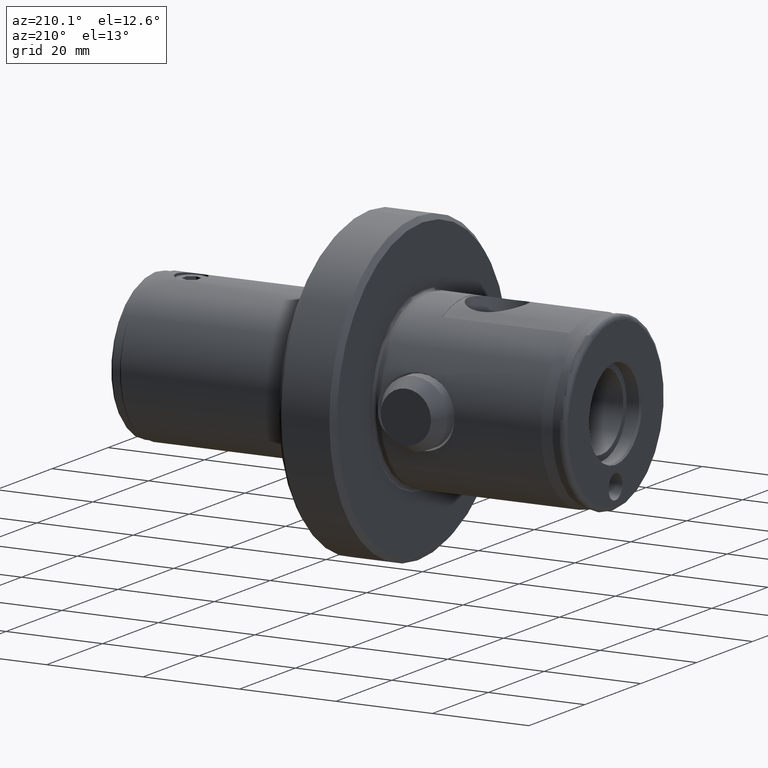
[diagram: clean part render]
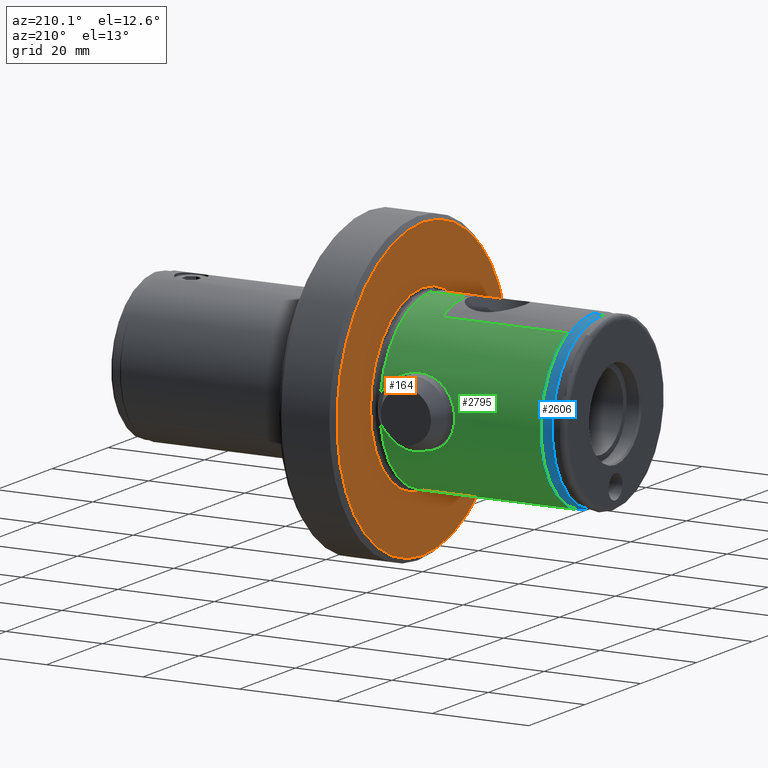
[diagram: same view with three faces highlighted in distinct colors, each labeled with its STEP entity id]
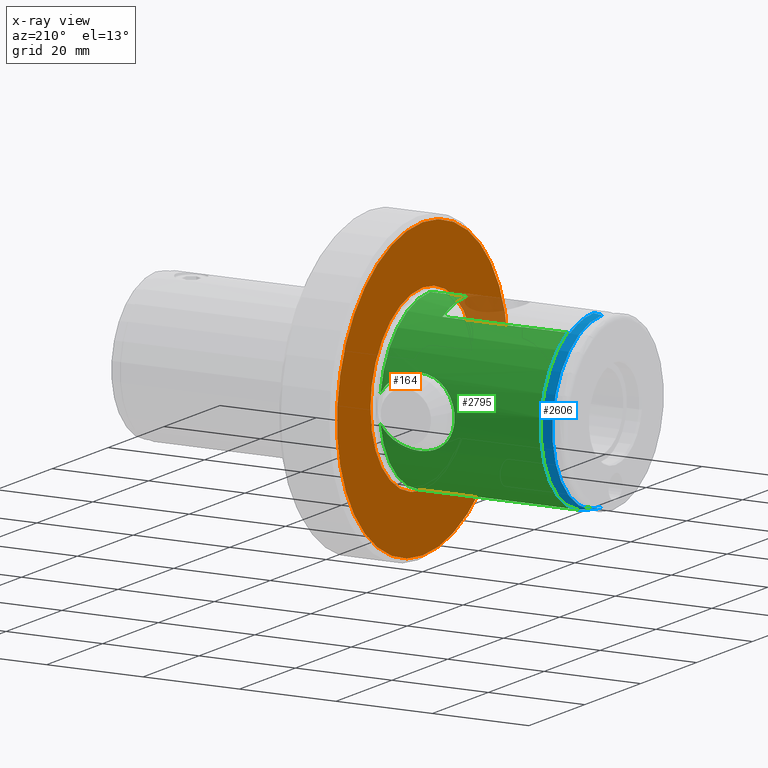
[diagram: x-ray of the same camera — body ghosted, the three highlighted faces saturated]
A machine part, auxiliary view with three faces highlighted in distinct colors.
The next image is the same camera in x-ray (body ghosted, the three faces saturated) — at least one of them is partly hidden behind the body in this view.
Their STEP definitions:

[orange] entity #164 — the highlighted planar face has unit normal (1, 0, 0).
#133 = VERTEX_POINT ( 'NONE', #4474 ) ;
#164 = ADVANCED_FACE ( 'NONE', ( #1389, #2657 ), #2022, .F. ) ;
#191 = VERTEX_POINT ( 'NONE', #1283 ) ;
#234 = DIRECTION ( 'NONE',  ( 0.0000000000000000000, 0.0000000000000000000, 1.000000000000000000 ) ) ;
#266 = DIRECTION ( 'NONE',  ( 0.0000000000000000000, 0.0000000000000000000, 1.000000000000000000 ) ) ;
#352 = EDGE_CURVE ( 'NONE', #133, #1387, #1136, .T. ) ;
#497 = ORIENTED_EDGE ( 'NONE', *, *, #1438, .T. ) ;
#683 = DIRECTION ( 'NONE',  ( -1.000000000000000000, -0.0000000000000000000, -0.0000000000000000000 ) ) ;
#685 = CIRCLE ( 'NONE', #4755, 18.63903132955060100 ) ;
#864 = DIRECTION ( 'NONE',  ( 1.000000000000000000, 0.0000000000000000000, 0.0000000000000000000 ) ) ;
#873 = CARTESIAN_POINT ( 'NONE',  ( 40.00000000000000000, 0.0000000000000000000, -30.63500000000000200 ) ) ;
#1017 = CARTESIAN_POINT ( 'NONE',  ( 40.00000000000000000, 0.0000000000000000000, 0.0000000000000000000 ) ) ;
#1049 = CARTESIAN_POINT ( 'NONE',  ( 40.00000000000000000, 0.0000000000000000000, 0.0000000000000000000 ) ) ;
#1136 = CIRCLE ( 'NONE', #2158, 18.63903132955060100 ) ;
#1175 = DIRECTION ( 'NONE',  ( 0.0000000000000000000, 0.0000000000000000000, -1.000000000000000000 ) ) ;
#1283 = CARTESIAN_POINT ( 'NONE',  ( 40.00000000000000000, 3.812937809145284600E-015, 30.63500000000000200 ) ) ;
#1387 = VERTEX_POINT ( 'NONE', #3756 ) ;
#1389 = FACE_BOUND ( 'NONE', #2537, .T. ) ;
#1438 = EDGE_CURVE ( 'NONE', #191, #3074, #2703, .T. ) ;
#1473 = EDGE_CURVE ( 'NONE', #1387, #133, #685, .T. ) ;
#1744 = EDGE_CURVE ( 'NONE', #3074, #191, #2765, .T. ) ;
#1834 = DIRECTION ( 'NONE',  ( -1.000000000000000000, -0.0000000000000000000, -0.0000000000000000000 ) ) ;
#2022 = PLANE ( 'NONE',  #2088 ) ;
#2078 = AXIS2_PLACEMENT_3D ( 'NONE', #1017, #1834, #2662 ) ;
#2088 = AXIS2_PLACEMENT_3D ( 'NONE', #2454, #864, #1175 ) ;
#2158 = AXIS2_PLACEMENT_3D ( 'NONE', #3876, #2733, #3115 ) ;
#2230 = ORIENTED_EDGE ( 'NONE', *, *, #1473, .F. ) ;
#2454 = CARTESIAN_POINT ( 'NONE',  ( 40.00000000000000000, 18.63903132955060100, 0.0000000000000000000 ) ) ;
#2537 = EDGE_LOOP ( 'NONE', ( #4413, #2230 ) ) ;
#2657 = FACE_OUTER_BOUND ( 'NONE', #5131, .T. ) ;
#2662 = DIRECTION ( 'NONE',  ( 0.0000000000000000000, 0.0000000000000000000, 1.000000000000000000 ) ) ;
#2703 = CIRCLE ( 'NONE', #2078, 30.63500000000000200 ) ;
#2733 = DIRECTION ( 'NONE',  ( -1.000000000000000000, -0.0000000000000000000, -0.0000000000000000000 ) ) ;
#2765 = CIRCLE ( 'NONE', #4656, 30.63500000000000200 ) ;
#3074 = VERTEX_POINT ( 'NONE', #873 ) ;
#3115 = DIRECTION ( 'NONE',  ( 0.0000000000000000000, 0.0000000000000000000, 1.000000000000000000 ) ) ;
#3689 = ORIENTED_EDGE ( 'NONE', *, *, #1744, .T. ) ;
#3756 = CARTESIAN_POINT ( 'NONE',  ( 40.00000000000000000, 2.282623005694137900E-015, -18.63903132955060100 ) ) ;
#3876 = CARTESIAN_POINT ( 'NONE',  ( 40.00000000000000000, 0.0000000000000000000, 0.0000000000000000000 ) ) ;
#3968 = CARTESIAN_POINT ( 'NONE',  ( 40.00000000000000000, 0.0000000000000000000, 0.0000000000000000000 ) ) ;
#4256 = DIRECTION ( 'NONE',  ( -1.000000000000000000, -0.0000000000000000000, -0.0000000000000000000 ) ) ;
#4413 = ORIENTED_EDGE ( 'NONE', *, *, #352, .F. ) ;
#4474 = CARTESIAN_POINT ( 'NONE',  ( 40.00000000000000000, 0.0000000000000000000, 18.63903132955060100 ) ) ;
#4656 = AXIS2_PLACEMENT_3D ( 'NONE', #3968, #683, #234 ) ;
#4755 = AXIS2_PLACEMENT_3D ( 'NONE', #1049, #4256, #266 ) ;
#5131 = EDGE_LOOP ( 'NONE', ( #3689, #497 ) ) ;

[blue] entity #2606 — the highlighted conical surface has half-angle 8 deg.
#110 = CARTESIAN_POINT ( 'NONE',  ( 2.822810404226113500, 2.185628119516886500E-015, 17.69401595690456800 ) ) ;
#143 = DIRECTION ( 'NONE',  ( 1.000000000000000000, 0.0000000000000000000, 0.0000000000000000000 ) ) ;
#230 = EDGE_CURVE ( 'NONE', #4234, #3862, #2348, .T. ) ;
#342 = VERTEX_POINT ( 'NONE', #1462 ) ;
#483 = EDGE_CURVE ( 'NONE', #610, #3862, #4649, .T. ) ;
#544 = VECTOR ( 'NONE', #3654, 1000.000000000000000 ) ;
#562 = CARTESIAN_POINT ( 'NONE',  ( 4.561173011721211700, 8.500000000000001800, 15.79663165262242700 ) ) ;
#596 = CARTESIAN_POINT ( 'NONE',  ( 4.506949049834921600, 2.572302290702973800, 17.74910654927889600 ) ) ;
#610 = VERTEX_POINT ( 'NONE', #110 ) ;
#613 = CARTESIAN_POINT ( 'NONE',  ( 4.541645771106434600, 7.187216486560393100, 16.49991008679421300 ) ) ;
#630 = CARTESIAN_POINT ( 'NONE',  ( 5.000000000000000000, 2.204364238465235000E-015, -17.99999999999999600 ) ) ;
#643 = CARTESIAN_POINT ( 'NONE',  ( 2.822810404226113500, 0.0000000000000000000, -17.69401595690456800 ) ) ;
#646 = ORIENTED_EDGE ( 'NONE', *, *, #5075, .F. ) ;
#747 = CARTESIAN_POINT ( 'NONE',  ( 4.561173011721211700, 8.500000000000001800, 15.79663165262242700 ) ) ;
#789 = EDGE_CURVE ( 'NONE', #342, #1439, #1516, .T. ) ;
#872 = ORIENTED_EDGE ( 'NONE', *, *, #230, .F. ) ;
#970 = CARTESIAN_POINT ( 'NONE',  ( 4.526975339076886800, 5.815750174379757300, 17.02811837977963100 ) ) ;
#986 = CARTESIAN_POINT ( 'NONE',  ( 4.503167209855087400, 1.469061508139440900, 17.88525124977483900 ) ) ;
#1087 = AXIS2_PLACEMENT_3D ( 'NONE', #3400, #143, #4237 ) ;
#1166 = CARTESIAN_POINT ( 'NONE',  ( 5.000000000000000000, 0.0000000000000000000, -17.99999999999999600 ) ) ;
#1186 = CARTESIAN_POINT ( 'NONE',  ( 4.629592276591484500, 8.500000000000001800, 15.80755104254829700 ) ) ;
#1188 = CIRCLE ( 'NONE', #4430, 17.69401595690456800 ) ;
#1202 = EDGE_CURVE ( 'NONE', #610, #1216, #1188, .T. ) ;
#1216 = VERTEX_POINT ( 'NONE', #643 ) ;
#1235 = CARTESIAN_POINT ( 'NONE',  ( 5.000000000000000000, 2.204364238465235000E-015, 17.99999999999999600 ) ) ;
#1239 = CONICAL_SURFACE ( 'NONE', #1087, 17.99999999999999600, 0.1396263401595468100 ) ;
#1251 = B_SPLINE_CURVE_WITH_KNOTS ( 'NONE', 3,
 ( #1565, #3982, #2782, #2364, #3607, #1186, #747 ),
 .UNSPECIFIED., .F., .F.,
 ( 4, 3, 4 ),
 ( 0.005353890723172515000, 0.005590410233427220800, 0.005798265535691416900 ),
 .UNSPECIFIED. ) ;
#1268 = DIRECTION ( 'NONE',  ( 0.9902680687415702500, 1.704378926181561200E-017, 0.1391731009600658800 ) ) ;
#1370 = CARTESIAN_POINT ( 'NONE',  ( 4.501924119433152100, 0.7342156615914451300, 17.93000000000000000 ) ) ;
#1383 = VECTOR ( 'NONE', #1268, 1000.000000000000000 ) ;
#1388 = CARTESIAN_POINT ( 'NONE',  ( 4.561173011721211700, 8.500000000000001800, 15.79663165262242700 ) ) ;
#1439 = VERTEX_POINT ( 'NONE', #630 ) ;
#1462 = CARTESIAN_POINT ( 'NONE',  ( 5.000000000000000000, 8.500000000000001800, 15.86663165262242400 ) ) ;
#1500 = LINE ( 'NONE', #1166, #544 ) ;
#1516 = CIRCLE ( 'NONE', #3269, 17.99999999999999600 ) ;
#1565 = CARTESIAN_POINT ( 'NONE',  ( 5.000000000000000000, 8.500000000000001800, 15.86663165262242400 ) ) ;
#1634 = ORIENTED_EDGE ( 'NONE', *, *, #789, .T. ) ;
#2000 = CARTESIAN_POINT ( 'NONE',  ( 4.501924119433152100, 1.318032018692837200E-015, 17.93000000000000000 ) ) ;
#2013 = ORIENTED_EDGE ( 'NONE', *, *, #1202, .F. ) ;
#2107 = DIRECTION ( 'NONE',  ( 0.0000000000000000000, 0.0000000000000000000, 1.000000000000000000 ) ) ;
#2150 = EDGE_CURVE ( 'NONE', #1216, #1439, #1500, .T. ) ;
#2213 = EDGE_LOOP ( 'NONE', ( #2013, #3244, #872, #646, #1634, #3537 ) ) ;
#2324 = DIRECTION ( 'NONE',  ( 0.0000000000000000000, 0.0000000000000000000, 1.000000000000000000 ) ) ;
#2348 = B_SPLINE_CURVE_WITH_KNOTS ( 'NONE', 3,
 ( #1388, #613, #970, #3385, #3801, #4223, #596, #986, #1370, #3437 ),
 .UNSPECIFIED., .F., .F.,
 ( 4, 2, 2, 2, 4 ),
 ( 2.236915273377554400E-007, 0.004405091776158564400, 0.005506308797316371500, 0.006607525818474176800, 0.008809959860789792800 ),
 .UNSPECIFIED. ) ;
#2364 = CARTESIAN_POINT ( 'NONE',  ( 4.766431990659278000, 8.500000000000001800, 15.82938240072041400 ) ) ;
#2606 = ADVANCED_FACE ( 'NONE', ( #2945 ), #1239, .T. ) ;
#2725 = CARTESIAN_POINT ( 'NONE',  ( 2.822810404226113500, 0.0000000000000000000, 0.0000000000000000000 ) ) ;
#2782 = CARTESIAN_POINT ( 'NONE',  ( 4.844287486133798600, 8.500000000000001800, 15.84180200070681500 ) ) ;
#2945 = FACE_OUTER_BOUND ( 'NONE', #2213, .T. ) ;
#3244 = ORIENTED_EDGE ( 'NONE', *, *, #483, .T. ) ;
#3269 = AXIS2_PLACEMENT_3D ( 'NONE', #4482, #4857, #2107 ) ;
#3385 = CARTESIAN_POINT ( 'NONE',  ( 4.514512600342740700, 4.030500815527453500, 17.47681169941615000 ) ) ;
#3400 = CARTESIAN_POINT ( 'NONE',  ( 5.000000000000000000, 0.0000000000000000000, 0.0000000000000000000 ) ) ;
#3437 = CARTESIAN_POINT ( 'NONE',  ( 4.501924119433152100, 1.318032018692837200E-015, 17.93000000000000000 ) ) ;
#3537 = ORIENTED_EDGE ( 'NONE', *, *, #2150, .F. ) ;
#3607 = CARTESIAN_POINT ( 'NONE',  ( 4.698011937138924800, 8.500000000000001800, 15.81846795350520200 ) ) ;
#3654 = DIRECTION ( 'NONE',  ( 0.9902680687415702500, 0.0000000000000000000, -0.1391731009600658800 ) ) ;
#3801 = CARTESIAN_POINT ( 'NONE',  ( 4.512318024354617500, 3.669854151725033400, 17.55581995454566900 ) ) ;
#3862 = VERTEX_POINT ( 'NONE', #2000 ) ;
#3982 = CARTESIAN_POINT ( 'NONE',  ( 4.922143490562183900, 8.500000000000001800, 15.85421841059769000 ) ) ;
#4223 = CARTESIAN_POINT ( 'NONE',  ( 4.508536962439103000, 2.941221782085254400, 17.69194170110860800 ) ) ;
#4234 = VERTEX_POINT ( 'NONE', #562 ) ;
#4237 = DIRECTION ( 'NONE',  ( 0.0000000000000000000, 0.0000000000000000000, -1.000000000000000000 ) ) ;
#4430 = AXIS2_PLACEMENT_3D ( 'NONE', #2725, #5141, #2324 ) ;
#4482 = CARTESIAN_POINT ( 'NONE',  ( 5.000000000000000000, 0.0000000000000000000, 0.0000000000000000000 ) ) ;
#4649 = LINE ( 'NONE', #1235, #1383 ) ;
#4857 = DIRECTION ( 'NONE',  ( -1.000000000000000000, -0.0000000000000000000, -0.0000000000000000000 ) ) ;
#5075 = EDGE_CURVE ( 'NONE', #342, #4234, #1251, .T. ) ;
#5141 = DIRECTION ( 'NONE',  ( -1.000000000000000000, -0.0000000000000000000, -0.0000000000000000000 ) ) ;

[green] entity #2795 — the highlighted cylindrical surface (partial cylindrical patch) has radius 18 mm, axis along (-1, -0, -0).
#6 = CARTESIAN_POINT ( 'NONE',  ( 28.68931508895390800, 16.62172541123075200, -6.909358408355208400 ) ) ;
#15 = CARTESIAN_POINT ( 'NONE',  ( 31.00000000000000000, 0.0000000000000000000, 0.0000000000000000000 ) ) ;
#26 = CARTESIAN_POINT ( 'NONE',  ( 34.91913907800201900, 16.86368335530488200, -6.294905354049918200 ) ) ;
#37 = CARTESIAN_POINT ( 'NONE',  ( 38.41455850893560600, 2.204364238465235000E-015, -17.99999999999999600 ) ) ;
#58 = CARTESIAN_POINT ( 'NONE',  ( 38.41455850893560600, 17.77522644697580400, -2.835722969320480000 ) ) ;
#194 = ORIENTED_EDGE ( 'NONE', *, *, #5069, .F. ) ;
#201 = CARTESIAN_POINT ( 'NONE',  ( 38.41455850893560600, 0.0000000000000000000, 17.99999999999999600 ) ) ;
#250 = VECTOR ( 'NONE', #1349, 1000.000000000000000 ) ;
#278 = CARTESIAN_POINT ( 'NONE',  ( 26.63762583643104200, 16.94773195362926200, 6.067828240129368400 ) ) ;
#342 = VERTEX_POINT ( 'NONE', #1462 ) ;
#343 = CARTESIAN_POINT ( 'NONE',  ( 26.28859359313112900, 17.02274508933090800, -5.856424216264334100 ) ) ;
#369 = LINE ( 'NONE', #3796, #250 ) ;
#424 = CARTESIAN_POINT ( 'NONE',  ( 31.31967915464217700, 16.49483146206961200, -7.205593547632094700 ) ) ;
#438 = CARTESIAN_POINT ( 'NONE',  ( 31.75936099716420500, 16.50645626538545600, -7.179204234457063000 ) ) ;
#456 = CARTESIAN_POINT ( 'NONE',  ( 33.06626629754461500, 16.59899160917127900, -6.962466582681459600 ) ) ;
#529 = CIRCLE ( 'NONE', #952, 17.99999999999999600 ) ;
#630 = CARTESIAN_POINT ( 'NONE',  ( 5.000000000000000000, 2.204364238465235000E-015, -17.99999999999999600 ) ) ;
#639 = CARTESIAN_POINT ( 'NONE',  ( 37.47707335714002100, 17.48007102607759600, 4.310109289213925400 ) ) ;
#659 = CARTESIAN_POINT ( 'NONE',  ( 33.04300684568005400, 16.59669515726684400, 6.967933976370146000 ) ) ;
#677 = CARTESIAN_POINT ( 'NONE',  ( 37.99646474748055200, 17.63860882376996000, 3.606855129293381700 ) ) ;
#684 = ORIENTED_EDGE ( 'NONE', *, *, #2637, .T. ) ;
#693 = B_SPLINE_CURVE_WITH_KNOTS ( 'NONE', 3,
 ( #5156, #1506, #2391, #3550, #5191, #2722, #3126, #711, #2756, #3532, #3927, #1146, #1162, #1921, #1521, #343, #1991, #4784, #3616, #6, #2025, #2440, #4033, #424, #438, #2826, #1595, #456, #3997, #3242, #4426, #26, #2060, #1664, #2873, #2006, #4409, #2043, #798, #2862, #2842, #58 ),
 .UNSPECIFIED., .F., .F.,
 ( 4, 2, 2, 2, 2, 2, 2, 2, 2, 2, 2, 2, 2, 2, 2, 2, 2, 2, 2, 2, 4 ),
 ( 0.04231837611106453700, 0.04364345451560890800, 0.04430599371788109000, 0.04496853292015327200, 0.04563107212242545300, 0.04629361132469764200, 0.04761868972924200600, 0.04894376813378637600, 0.05026884653833074000, 0.05159392494287511100, 0.05291900334741947400, 0.05424408175196383800, 0.05556916015650819500, 0.05623169935878038300, 0.05689423856105257900, 0.05821931696559695700, 0.05888185616786913900, 0.05954439537014132700, 0.06086947377468571900, 0.06219455217923010300, 0.06351963058377449500 ),
 .UNSPECIFIED. ) ;
#694 = CARTESIAN_POINT ( 'NONE',  ( 23.55458967925925500, 17.78533201208745100, 2.779154847720370900 ) ) ;
#706 = ORIENTED_EDGE ( 'NONE', *, *, #3197, .F. ) ;
#711 = CARTESIAN_POINT ( 'NONE',  ( 23.55845802897322000, 17.78404422032052400, -2.787362493545952400 ) ) ;
#789 = EDGE_CURVE ( 'NONE', #342, #1439, #1516, .T. ) ;
#798 = CARTESIAN_POINT ( 'NONE',  ( 37.48006713832752700, 17.48094520961730700, -4.306718970528768500 ) ) ;
#952 = AXIS2_PLACEMENT_3D ( 'NONE', #15, #1228, #3251 ) ;
#981 = VERTEX_POINT ( 'NONE', #1733 ) ;
#1028 = CARTESIAN_POINT ( 'NONE',  ( 38.22325769522573300, 17.71178676538877300, 3.233383360738678400 ) ) ;
#1045 = CARTESIAN_POINT ( 'NONE',  ( 37.18306621504534300, 17.39441197991005300, 4.640149856457091100 ) ) ;
#1074 = CARTESIAN_POINT ( 'NONE',  ( 34.30770989249216300, 16.75615000173566600, 6.577976082768544500 ) ) ;
#1110 = EDGE_LOOP ( 'NONE', ( #684, #1668, #4243, #194, #3954, #706, #4104, #2972, #4543 ) ) ;
#1113 = AXIS2_PLACEMENT_3D ( 'NONE', #4369, #4819, #5208 ) ;
#1146 = CARTESIAN_POINT ( 'NONE',  ( 24.35650833749220100, 17.52982895310218200, -4.103990358311621700 ) ) ;
#1162 = CARTESIAN_POINT ( 'NONE',  ( 24.63436073430891300, 17.44689145738176400, -4.439577198171324600 ) ) ;
#1167 = DIRECTION ( 'NONE',  ( -1.000000000000000000, -0.0000000000000000000, -0.0000000000000000000 ) ) ;
#1228 = DIRECTION ( 'NONE',  ( 1.000000000000000000, 0.0000000000000000000, 0.0000000000000000000 ) ) ;
#1349 = DIRECTION ( 'NONE',  ( -1.000000000000000000, -0.0000000000000000000, -0.0000000000000000000 ) ) ;
#1405 = EDGE_CURVE ( 'NONE', #2061, #1439, #369, .T. ) ;
#1439 = VERTEX_POINT ( 'NONE', #630 ) ;
#1462 = CARTESIAN_POINT ( 'NONE',  ( 5.000000000000000000, 8.500000000000001800, 15.86663165262242400 ) ) ;
#1472 = CARTESIAN_POINT ( 'NONE',  ( 31.73670170766269300, 16.50563471118012500, 7.181082085637370000 ) ) ;
#1487 = CARTESIAN_POINT ( 'NONE',  ( 24.62010505910683000, 17.45106249884142000, 4.423131486813447900 ) ) ;
#1506 = CARTESIAN_POINT ( 'NONE',  ( 22.93190200199919500, 17.99999999999998900, -0.4442097121161643900 ) ) ;
#1516 = CIRCLE ( 'NONE', #3269, 17.99999999999999600 ) ;
#1521 = CARTESIAN_POINT ( 'NONE',  ( 25.58281051922636000, 17.18925380789051300, -5.348000421195600000 ) ) ;
#1548 = CIRCLE ( 'NONE', #1113, 17.99999999999999600 ) ;
#1595 = CARTESIAN_POINT ( 'NONE',  ( 32.63231668030569900, 16.56034365531662500, -7.053898310445703100 ) ) ;
#1664 = CARTESIAN_POINT ( 'NONE',  ( 35.49434043996613000, 16.97779143842763700, -5.980604082472052800 ) ) ;
#1668 = ORIENTED_EDGE ( 'NONE', *, *, #1405, .T. ) ;
#1733 = CARTESIAN_POINT ( 'NONE',  ( 22.93190200199920200, 17.99999999999999600, -3.871334892372115400E-025 ) ) ;
#1826 = CARTESIAN_POINT ( 'NONE',  ( 32.60957766427833300, 16.55856864973131700, 7.058059103920378200 ) ) ;
#1881 = CARTESIAN_POINT ( 'NONE',  ( 30.40898110822280400, 16.50078830626885900, 7.191943260475200700 ) ) ;
#1897 = CARTESIAN_POINT ( 'NONE',  ( 24.34541863625331000, 17.53321062079486100, 4.089163731635486500 ) ) ;
#1915 = AXIS2_PLACEMENT_3D ( 'NONE', #3754, #2569, #3813 ) ;
#1921 = CARTESIAN_POINT ( 'NONE',  ( 25.24655750495666600, 17.27678132775169600, -5.061293725643069200 ) ) ;
#1938 = CARTESIAN_POINT ( 'NONE',  ( 22.93190200199919500, 17.99999999999999300, 0.2219730551926340800 ) ) ;
#1991 = CARTESIAN_POINT ( 'NONE',  ( 26.66053469898521300, 16.94301535979870400, -6.080955321691590100 ) ) ;
#2006 = CARTESIAN_POINT ( 'NONE',  ( 36.22501593775069800, 17.14163620460445300, -5.498251275227708000 ) ) ;
#2025 = CARTESIAN_POINT ( 'NONE',  ( 29.11575502398848100, 16.57827458412401000, -7.011903959323706900 ) ) ;
#2043 = CARTESIAN_POINT ( 'NONE',  ( 37.18956424906622300, 17.39628433779718700, -4.633026610527011300 ) ) ;
#2060 = CARTESIAN_POINT ( 'NONE',  ( 35.11323967572234700, 16.90058372384155700, -6.195425498821697000 ) ) ;
#2061 = VERTEX_POINT ( 'NONE', #37 ) ;
#2107 = DIRECTION ( 'NONE',  ( 0.0000000000000000000, 0.0000000000000000000, 1.000000000000000000 ) ) ;
#2114 = AXIS2_PLACEMENT_3D ( 'NONE', #3467, #3872, #3499 ) ;
#2242 = CARTESIAN_POINT ( 'NONE',  ( 36.21141091913104800, 17.13830921320812500, 5.508610082120564600 ) ) ;
#2270 = CARTESIAN_POINT ( 'NONE',  ( 36.55129623075387000, 17.22388653117948800, 5.237775441756848900 ) ) ;
#2288 = CARTESIAN_POINT ( 'NONE',  ( 29.09134896299174100, 16.58051310533916100, 7.006623401730663200 ) ) ;
#2306 = CARTESIAN_POINT ( 'NONE',  ( 33.89734758831384200, 16.69476340113109500, 6.730705771259678700 ) ) ;
#2387 = EDGE_CURVE ( 'NONE', #3970, #981, #3114, .T. ) ;
#2391 = CARTESIAN_POINT ( 'NONE',  ( 22.97769097315834600, 17.98358038333631000, -0.8840669560141553000 ) ) ;
#2440 = CARTESIAN_POINT ( 'NONE',  ( 29.98658153610719900, 16.51738820525706300, -7.154150697198582000 ) ) ;
#2481 = EDGE_CURVE ( 'NONE', #981, #5214, #693, .T. ) ;
#2563 = DIRECTION ( 'NONE',  ( -1.000000000000000000, -0.0000000000000000000, -0.0000000000000000000 ) ) ;
#2569 = DIRECTION ( 'NONE',  ( -1.000000000000000000, -0.0000000000000000000, -0.0000000000000000000 ) ) ;
#2607 = VERTEX_POINT ( 'NONE', #3776 ) ;
#2637 = EDGE_CURVE ( 'NONE', #5214, #2061, #5138, .T. ) ;
#2672 = CARTESIAN_POINT ( 'NONE',  ( 35.09994271429703600, 16.89526614417736600, 6.211949303041297600 ) ) ;
#2689 = CARTESIAN_POINT ( 'NONE',  ( 27.41661514601358400, 16.80145667017276200, 6.461827271297570600 ) ) ;
#2702 = CARTESIAN_POINT ( 'NONE',  ( 27.82837615247086700, 16.73465567413484900, 6.631197576125881500 ) ) ;
#2722 = CARTESIAN_POINT ( 'NONE',  ( 23.30652457802580500, 17.86911317836021200, -2.177142978797158800 ) ) ;
#2741 = CARTESIAN_POINT ( 'NONE',  ( 22.99013818440916200, 17.97931556761555100, 0.8908833420161134100 ) ) ;
#2756 = CARTESIAN_POINT ( 'NONE',  ( 23.65540555508770400, 17.75190002092530900, -2.984704378626416700 ) ) ;
#2795 = ADVANCED_FACE ( 'NONE', ( #4820 ), #4003, .T. ) ;
#2826 = CARTESIAN_POINT ( 'NONE',  ( 32.41461366777974000, 16.54432081348344900, -7.091295141990646500 ) ) ;
#2842 = CARTESIAN_POINT ( 'NONE',  ( 38.22606379371786300, 17.71271733118926800, -3.227550274077396700 ) ) ;
#2862 = CARTESIAN_POINT ( 'NONE',  ( 38.00119512299937000, 17.64009293534651600, -3.599777068804775200 ) ) ;
#2867 = LINE ( 'NONE', #4735, #4182 ) ;
#2873 = CARTESIAN_POINT ( 'NONE',  ( 35.68202834501068600, 17.01826837074836600, -5.864738389333546700 ) ) ;
#2972 = ORIENTED_EDGE ( 'NONE', *, *, #2387, .T. ) ;
#2998 = LINE ( 'NONE', #4889, #5066 ) ;
#3056 = CARTESIAN_POINT ( 'NONE',  ( 38.41455850893566300, 17.77522644697582200, 2.835722969320359200 ) ) ;
#3072 = CARTESIAN_POINT ( 'NONE',  ( 33.25972824885349200, 16.61916049909768500, 6.914324667310957300 ) ) ;
#3089 = CARTESIAN_POINT ( 'NONE',  ( 26.26695388476233700, 17.02754932183958700, 5.842477938537720100 ) ) ;
#3107 = CARTESIAN_POINT ( 'NONE',  ( 23.86494661084117700, 17.68381765283066500, 3.364656110074328000 ) ) ;
#3114 = B_SPLINE_CURVE_WITH_KNOTS ( 'NONE', 3,
 ( #3056, #1028, #677, #639, #1045, #2270, #2242, #5070, #2672, #1074, #2306, #3072, #659, #1826, #5030, #1472, #4289, #1881, #4674, #2288, #5085, #2702, #2689, #278, #3089, #3494, #3896, #1487, #1897, #4692, #3107, #5103, #694, #3513, #3830, #4232, #2741, #4729, #1938, #4748 ),
 .UNSPECIFIED., .F., .F.,
 ( 4, 2, 2, 2, 2, 2, 2, 2, 2, 2, 2, 2, 2, 2, 2, 2, 2, 2, 2, 4 ),
 ( 0.02112970282967841000, 0.02245399490976504300, 0.02377828698985167500, 0.02510257906993831200, 0.02642687115002494500, 0.02775116323011157800, 0.02841330927015489600, 0.02907545531019821100, 0.03039974739028484400, 0.03172403947037148000, 0.03304833155045811000, 0.03437262363054474600, 0.03569691571063138300, 0.03702120779071801200, 0.03834549987080464200, 0.03900764591084796000, 0.03966979195089127800, 0.04099408403097791500, 0.04165623007102122600, 0.04231837611106453700 ),
 .UNSPECIFIED. ) ;
#3126 = CARTESIAN_POINT ( 'NONE',  ( 23.38401876159309400, 17.84265000916357000, -2.383581161034348900 ) ) ;
#3150 = CARTESIAN_POINT ( 'NONE',  ( 38.41455850893560600, 17.77522644697580400, -2.835722969320480000 ) ) ;
#3197 = EDGE_CURVE ( 'NONE', #4087, #2607, #2998, .T. ) ;
#3242 = CARTESIAN_POINT ( 'NONE',  ( 33.91735542046166100, 16.69758163014083200, -6.723725016323570000 ) ) ;
#3251 = DIRECTION ( 'NONE',  ( 0.0000000000000000000, 0.0000000000000000000, -1.000000000000000000 ) ) ;
#3269 = AXIS2_PLACEMENT_3D ( 'NONE', #4482, #4857, #2107 ) ;
#3467 = CARTESIAN_POINT ( 'NONE',  ( 0.0000000000000000000, 0.0000000000000000000, 0.0000000000000000000 ) ) ;
#3494 = CARTESIAN_POINT ( 'NONE',  ( 25.56355220360657300, 17.19411628802263800, 5.332386843050134200 ) ) ;
#3499 = DIRECTION ( 'NONE',  ( 0.0000000000000000000, 0.0000000000000000000, 1.000000000000000000 ) ) ;
#3513 = CARTESIAN_POINT ( 'NONE',  ( 23.29353052584658500, 17.87307550028492300, 2.172583244038402700 ) ) ;
#3532 = CARTESIAN_POINT ( 'NONE',  ( 23.86842660269960000, 17.68269974206002400, -3.370540670704040400 ) ) ;
#3550 = CARTESIAN_POINT ( 'NONE',  ( 23.11450770583963900, 17.93555306454750200, -1.537407140434435200 ) ) ;
#3616 = CARTESIAN_POINT ( 'NONE',  ( 27.85411953193403200, 16.73078757115319000, -6.640913830973035600 ) ) ;
#3724 = EDGE_CURVE ( 'NONE', #4087, #3970, #1548, .T. ) ;
#3748 = CARTESIAN_POINT ( 'NONE',  ( 31.00000000000000000, 8.500000000000001800, 15.86663165262242400 ) ) ;
#3754 = CARTESIAN_POINT ( 'NONE',  ( 38.41455850893560600, 0.0000000000000000000, 0.0000000000000000000 ) ) ;
#3776 = CARTESIAN_POINT ( 'NONE',  ( 31.00000000000000000, 0.0000000000000000000, 17.99999999999999600 ) ) ;
#3796 = CARTESIAN_POINT ( 'NONE',  ( 0.0000000000000000000, 2.204364238465235000E-015, -17.99999999999999600 ) ) ;
#3813 = DIRECTION ( 'NONE',  ( 0.0000000000000000000, 0.0000000000000000000, 1.000000000000000000 ) ) ;
#3830 = CARTESIAN_POINT ( 'NONE',  ( 23.16053221535248600, 17.91940058224394500, 1.755418095963167300 ) ) ;
#3838 = EDGE_CURVE ( 'NONE', #4360, #2607, #529, .T. ) ;
#3872 = DIRECTION ( 'NONE',  ( -1.000000000000000000, -0.0000000000000000000, -0.0000000000000000000 ) ) ;
#3896 = CARTESIAN_POINT ( 'NONE',  ( 25.22811866797911400, 17.28170604738808100, 5.044433623290114400 ) ) ;
#3927 = CARTESIAN_POINT ( 'NONE',  ( 23.98500906537170600, 17.64549065747029400, -3.559644568445278000 ) ) ;
#3954 = ORIENTED_EDGE ( 'NONE', *, *, #3838, .T. ) ;
#3970 = VERTEX_POINT ( 'NONE', #4077 ) ;
#3997 = CARTESIAN_POINT ( 'NONE',  ( 33.28246580513797400, 16.62165037414337100, -6.908340353321326800 ) ) ;
#4003 = CYLINDRICAL_SURFACE ( 'NONE', #2114, 17.99999999999999600 ) ;
#4033 = CARTESIAN_POINT ( 'NONE',  ( 30.43455029711807200, 16.50009753239773900, -7.193526586947546900 ) ) ;
#4077 = CARTESIAN_POINT ( 'NONE',  ( 38.41455850893566300, 17.77522644697582200, 2.835722969320359200 ) ) ;
#4087 = VERTEX_POINT ( 'NONE', #201 ) ;
#4104 = ORIENTED_EDGE ( 'NONE', *, *, #3724, .T. ) ;
#4182 = VECTOR ( 'NONE', #1167, 1000.000000000000000 ) ;
#4232 = CARTESIAN_POINT ( 'NONE',  ( 23.02472694820993100, 17.96706735049164300, 1.109546440009177200 ) ) ;
#4243 = ORIENTED_EDGE ( 'NONE', *, *, #789, .F. ) ;
#4289 = CARTESIAN_POINT ( 'NONE',  ( 31.29644119268686700, 16.49445989731545500, 7.206445398811125000 ) ) ;
#4360 = VERTEX_POINT ( 'NONE', #3748 ) ;
#4369 = CARTESIAN_POINT ( 'NONE',  ( 38.41455850893560600, 0.0000000000000000000, 0.0000000000000000000 ) ) ;
#4409 = CARTESIAN_POINT ( 'NONE',  ( 36.56274029073384900, 17.22686039147078000, -5.227898754577625900 ) ) ;
#4426 = CARTESIAN_POINT ( 'NONE',  ( 34.32638708030926700, 16.75911846020310500, -6.570429767877737200 ) ) ;
#4482 = CARTESIAN_POINT ( 'NONE',  ( 5.000000000000000000, 0.0000000000000000000, 0.0000000000000000000 ) ) ;
#4543 = ORIENTED_EDGE ( 'NONE', *, *, #2481, .T. ) ;
#4674 = CARTESIAN_POINT ( 'NONE',  ( 29.96136775513525000, 16.51864850772420500, 7.151254282170668800 ) ) ;
#4692 = CARTESIAN_POINT ( 'NONE',  ( 23.97929142787597500, 17.64730792314463400, 3.550522037677807500 ) ) ;
#4729 = CARTESIAN_POINT ( 'NONE',  ( 22.94356862908022200, 17.99583828762101600, 0.4463919071600912500 ) ) ;
#4735 = CARTESIAN_POINT ( 'NONE',  ( 0.0000000000000000000, 8.500000000000001800, 15.86663165262242400 ) ) ;
#4748 = CARTESIAN_POINT ( 'NONE',  ( 22.93190200199920200, 17.99999999999999600, -3.871334892372115400E-025 ) ) ;
#4784 = CARTESIAN_POINT ( 'NONE',  ( 27.44232305104138100, 16.79707083821646000, -6.473190740486644200 ) ) ;
#4819 = DIRECTION ( 'NONE',  ( -1.000000000000000000, -0.0000000000000000000, -0.0000000000000000000 ) ) ;
#4820 = FACE_OUTER_BOUND ( 'NONE', #1110, .T. ) ;
#4857 = DIRECTION ( 'NONE',  ( -1.000000000000000000, -0.0000000000000000000, -0.0000000000000000000 ) ) ;
#4889 = CARTESIAN_POINT ( 'NONE',  ( 0.0000000000000000000, 0.0000000000000000000, 17.99999999999999600 ) ) ;
#5030 = CARTESIAN_POINT ( 'NONE',  ( 32.39199808531108700, 16.54278849941125200, 7.094866309426890900 ) ) ;
#5066 = VECTOR ( 'NONE', #2563, 1000.000000000000000 ) ;
#5069 = EDGE_CURVE ( 'NONE', #4360, #342, #2867, .T. ) ;
#5070 = CARTESIAN_POINT ( 'NONE',  ( 35.48418382912816300, 16.97356370694042800, 5.997046173810051800 ) ) ;
#5085 = CARTESIAN_POINT ( 'NONE',  ( 28.66477119139607800, 16.62445352552378000, 6.902827449905713000 ) ) ;
#5103 = CARTESIAN_POINT ( 'NONE',  ( 23.65265180328631800, 17.75280752788188500, 2.979285551202866900 ) ) ;
#5138 = CIRCLE ( 'NONE', #1915, 17.99999999999999600 ) ;
#5156 = CARTESIAN_POINT ( 'NONE',  ( 22.93190200199920200, 17.99999999999999600, -3.871334892372115400E-025 ) ) ;
#5191 = CARTESIAN_POINT ( 'NONE',  ( 23.17186351799894700, 17.91553109237514000, -1.754680315417129300 ) ) ;
#5208 = DIRECTION ( 'NONE',  ( 0.0000000000000000000, 0.0000000000000000000, 1.000000000000000000 ) ) ;
#5214 = VERTEX_POINT ( 'NONE', #3150 ) ;